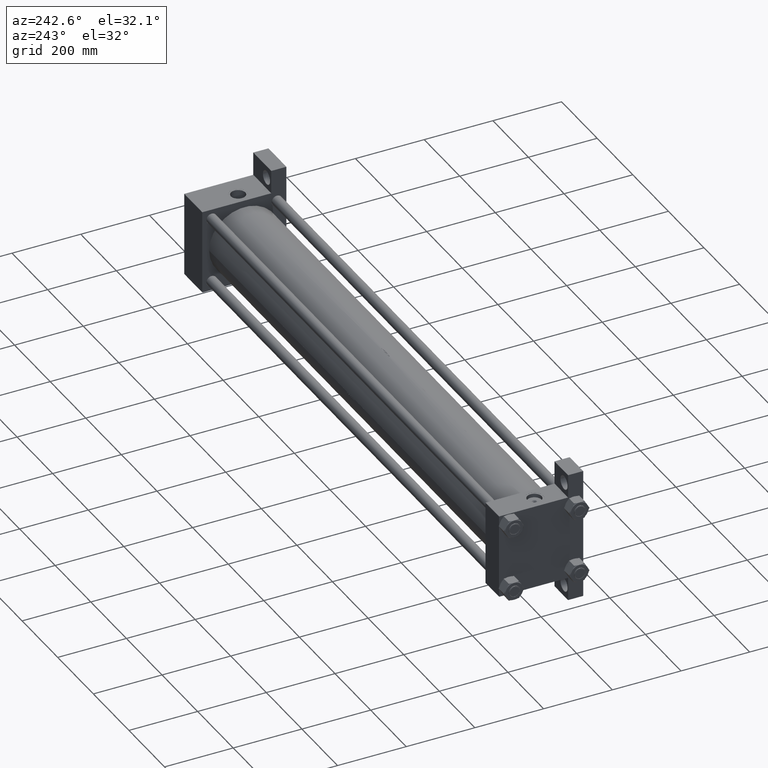
[diagram: clean part render]
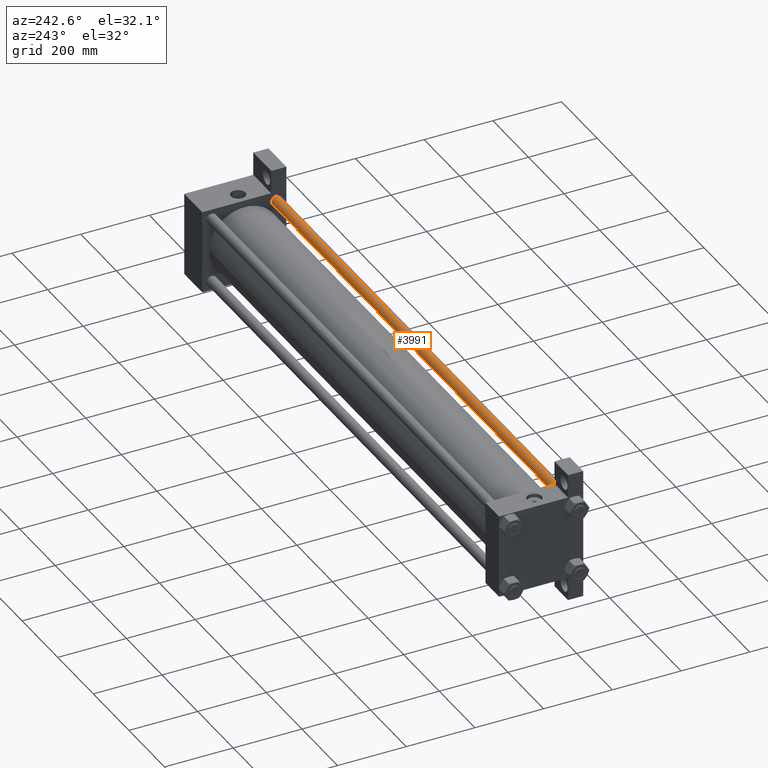
[diagram: same view with one face highlighted and labeled with its STEP entity id]
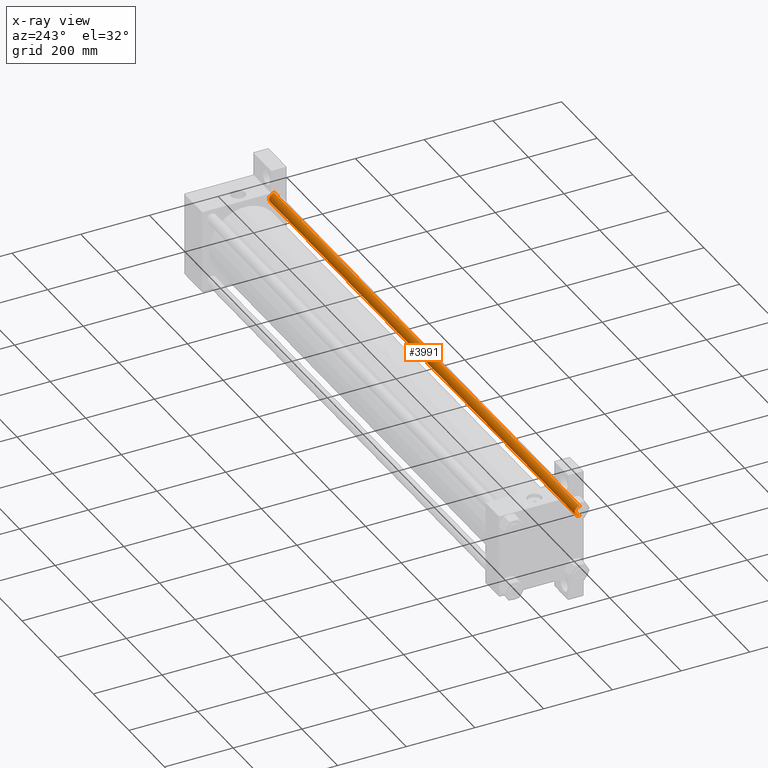
[diagram: x-ray of the same camera — body ghosted, the highlighted face saturated]
A machine part, auxiliary view. The second image highlights one B-rep face of the part: STEP entity #3991.
The next image is the same camera in x-ray: the body ghosted, the highlighted face saturated — about 0% of this face is hidden behind the body in this view.
In plain terms, the highlighted cylindrical surface (edge-blend (fillet) strip) has radius 15 mm, axis along (1, 0, 0).
Its self-contained STEP definition (entity closure, byte-faithful):
#84 = DIRECTION ( 'NONE',  ( -0.000000000000000000, -0.000000000000000000, -1.000000000000000000 ) ) ;
#358 = DIRECTION ( 'NONE',  ( -0.000000000000000000, -0.000000000000000000, -1.000000000000000000 ) ) ;
#3028 = CYLINDRICAL_SURFACE ( 'NONE', #45159, 15.00000000000000000 ) ;
#3168 = DIRECTION ( 'NONE',  ( -0.000000000000000000, -0.000000000000000000, -1.000000000000000000 ) ) ;
#3991 = ADVANCED_FACE ( 'NONE', ( #33457 ), #3028, .T. ) ;
#6068 = EDGE_CURVE ( 'NONE', #7021, #33193, #19570, .T. ) ;
#6425 = DIRECTION ( 'NONE',  ( 1.000000000000000000, 0.000000000000000000, 0.000000000000000000 ) ) ;
#7021 = VERTEX_POINT ( 'NONE', #31288 ) ;
#7399 = DIRECTION ( 'NONE',  ( 1.000000000000000000, 0.000000000000000000, 0.000000000000000000 ) ) ;
#8477 = CIRCLE ( 'NONE', #10049, 15.00000000000000000 ) ;
#8941 = EDGE_CURVE ( 'NONE', #20880, #7021, #43850, .T. ) ;
#10049 = AXIS2_PLACEMENT_3D ( 'NONE', #48066, #30282, #7399 ) ;
#10073 = CARTESIAN_POINT ( 'NONE',  ( 0.000000000000000000, 0.000000000000000000, 0.5000000000001669775 ) ) ;
#11523 = ORIENTED_EDGE ( 'NONE', *, *, #6068, .T. ) ;
#13743 = DIRECTION ( 'NONE',  ( -0.000000000000000000, -0.000000000000000000, 1.000000000000000000 ) ) ;
#17911 = VERTEX_POINT ( 'NONE', #45234 ) ;
#17957 = EDGE_LOOP ( 'NONE', ( #35358, #18970, #41329, #11523 ) ) ;
#18644 = EDGE_CURVE ( 'NONE', #17911, #20880, #8477, .T. ) ;
#18970 = ORIENTED_EDGE ( 'NONE', *, *, #18644, .T. ) ;
#19570 = CIRCLE ( 'NONE', #22691, 15.00000000000000000 ) ;
#20880 = VERTEX_POINT ( 'NONE', #33938 ) ;
#21472 = CARTESIAN_POINT ( 'NONE',  ( -15.00000000000000000, 0.000000000000000000, 1718.000000000000000 ) ) ;
#22691 = AXIS2_PLACEMENT_3D ( 'NONE', #10073, #13743, #6425 ) ;
#24542 = EDGE_CURVE ( 'NONE', #17911, #33193, #41252, .T. ) ;
#26685 = VECTOR ( 'NONE', #3168, 1000.000000000000000 ) ;
#29815 = DIRECTION ( 'NONE',  ( -1.000000000000000000, 0.000000000000000000, 0.000000000000000000 ) ) ;
#30282 = DIRECTION ( 'NONE',  ( 0.000000000000000000, 0.000000000000000000, -1.000000000000000000 ) ) ;
#31288 = CARTESIAN_POINT ( 'NONE',  ( -15.00000000000000000, 0.000000000000000000, 0.5000000000001669775 ) ) ;
#32750 = CARTESIAN_POINT ( 'NONE',  ( 0.000000000000000000, 0.000000000000000000, 1718.000000000000000 ) ) ;
#33193 = VERTEX_POINT ( 'NONE', #39234 ) ;
#33457 = FACE_OUTER_BOUND ( 'NONE', #17957, .T. ) ;
#33938 = CARTESIAN_POINT ( 'NONE',  ( -15.00000000000000000, 0.000000000000000000, 1717.499999999999773 ) ) ;
#35358 = ORIENTED_EDGE ( 'NONE', *, *, #24542, .F. ) ;
#39234 = CARTESIAN_POINT ( 'NONE',  ( 15.00000000000000000, 1.836970198721029589E-15, 0.5000000000001669775 ) ) ;
#41252 = LINE ( 'NONE', #41506, #47559 ) ;
#41329 = ORIENTED_EDGE ( 'NONE', *, *, #8941, .T. ) ;
#41506 = CARTESIAN_POINT ( 'NONE',  ( 15.00000000000000000, 1.836970198721029589E-15, 1718.000000000000000 ) ) ;
#43850 = LINE ( 'NONE', #21472, #26685 ) ;
#45159 = AXIS2_PLACEMENT_3D ( 'NONE', #32750, #84, #29815 ) ;
#45234 = CARTESIAN_POINT ( 'NONE',  ( 15.00000000000000000, 1.836970198721029589E-15, 1717.499999999999773 ) ) ;
#47559 = VECTOR ( 'NONE', #358, 1000.000000000000000 ) ;
#48066 = CARTESIAN_POINT ( 'NONE',  ( 0.000000000000000000, 0.000000000000000000, 1717.499999999999773 ) ) ;